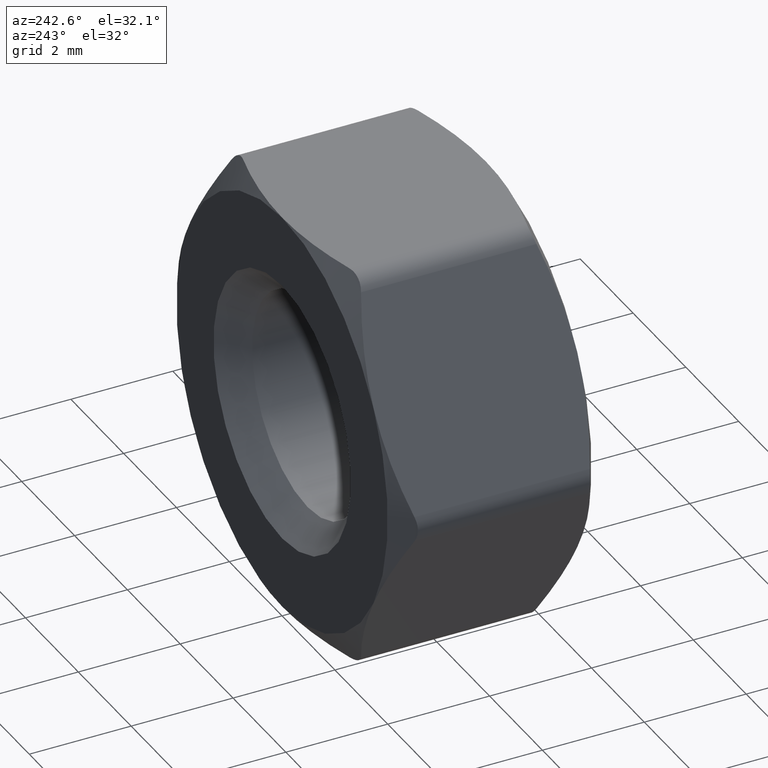
[diagram: clean part render]
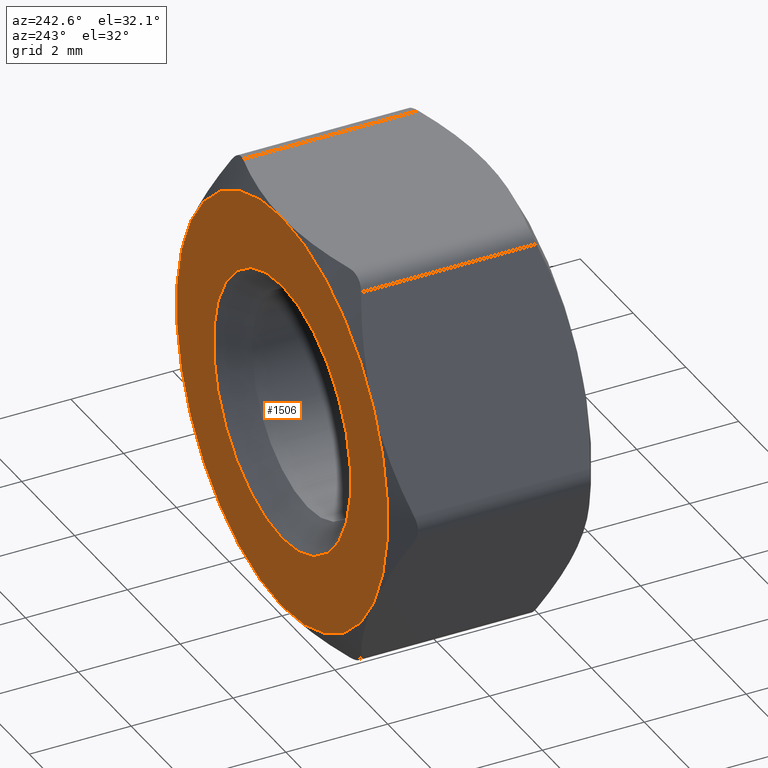
[diagram: same view with one face highlighted and labeled with its STEP entity id]
A machine part, auxiliary view. The second image highlights one B-rep face of the part: STEP entity #1506.
In plain terms, the highlighted planar face has unit normal (0, 1, 0).
Its self-contained STEP definition (entity closure, byte-faithful):
#15 = ORIENTED_EDGE ( 'NONE', *, *, #1090, .F. ) ;
#34 = ORIENTED_EDGE ( 'NONE', *, *, #771, .F. ) ;
#90 = AXIS2_PLACEMENT_3D ( 'NONE', #1429, #1722, #202 ) ;
#106 = CARTESIAN_POINT ( 'NONE',  ( 0.0000000000000000000, 2.000000000000000000, 2.600000000000000100 ) ) ;
#177 = CARTESIAN_POINT ( 'NONE',  ( 0.0000000000000000000, 2.000000000000000000, 0.0000000000000000000 ) ) ;
#202 = DIRECTION ( 'NONE',  ( 0.0000000000000000000, -0.0000000000000000000, 1.000000000000000000 ) ) ;
#232 = DIRECTION ( 'NONE',  ( 0.0000000000000000000, 0.0000000000000000000, 1.000000000000000000 ) ) ;
#243 = ORIENTED_EDGE ( 'NONE', *, *, #1438, .T. ) ;
#299 = CARTESIAN_POINT ( 'NONE',  ( -3.386450907888040900E-016, 2.000000000000000000, 1.173101005959984200E-015 ) ) ;
#330 = EDGE_CURVE ( 'NONE', #1328, #1303, #571, .T. ) ;
#333 = EDGE_LOOP ( 'NONE', ( #34, #15, #1243, #818, #1570, #1660 ) ) ;
#336 = DIRECTION ( 'NONE',  ( 0.0000000000000000000, 0.0000000000000000000, 1.000000000000000000 ) ) ;
#359 = AXIS2_PLACEMENT_3D ( 'NONE', #1763, #1173, #232 ) ;
#416 = AXIS2_PLACEMENT_3D ( 'NONE', #1409, #1548, #728 ) ;
#438 = AXIS2_PLACEMENT_3D ( 'NONE', #177, #1405, #868 ) ;
#448 = CARTESIAN_POINT ( 'NONE',  ( 3.464101615137754400, 1.999999999999999600, 2.000000000000000400 ) ) ;
#498 = EDGE_CURVE ( 'NONE', #1134, #1328, #1128, .T. ) ;
#516 = CARTESIAN_POINT ( 'NONE',  ( -3.386450907888039500E-016, 1.999999999999999100, 4.000000000000000000 ) ) ;
#522 = CARTESIAN_POINT ( 'NONE',  ( -3.464101615137754800, 1.999999999999998700, 2.000000000000001300 ) ) ;
#524 = CARTESIAN_POINT ( 'NONE',  ( -3.386450907888040900E-016, 2.000000000000000000, 1.173101005959984200E-015 ) ) ;
#565 = AXIS2_PLACEMENT_3D ( 'NONE', #524, #659, #1642 ) ;
#571 = CIRCLE ( 'NONE', #416, 3.999999999999997300 ) ;
#626 = VERTEX_POINT ( 'NONE', #516 ) ;
#659 = DIRECTION ( 'NONE',  ( -0.0000000000000000000, -1.000000000000000000, -0.0000000000000000000 ) ) ;
#699 = CARTESIAN_POINT ( 'NONE',  ( -3.386450907888039500E-016, 1.999999999999999100, -4.000000000000000000 ) ) ;
#711 = CIRCLE ( 'NONE', #749, 4.000000000000000000 ) ;
#728 = DIRECTION ( 'NONE',  ( 1.776356839400250500E-015, 0.0000000000000000000, 1.000000000000000000 ) ) ;
#734 = CIRCLE ( 'NONE', #359, 3.999999999999997300 ) ;
#749 = AXIS2_PLACEMENT_3D ( 'NONE', #1666, #1363, #1247 ) ;
#771 = EDGE_CURVE ( 'NONE', #626, #1667, #1111, .T. ) ;
#792 = VERTEX_POINT ( 'NONE', #106 ) ;
#818 = ORIENTED_EDGE ( 'NONE', *, *, #498, .F. ) ;
#841 = CARTESIAN_POINT ( 'NONE',  ( -3.464101615137756600, 1.999999999999998700, -1.999999999999998700 ) ) ;
#868 = DIRECTION ( 'NONE',  ( 0.0000000000000000000, 0.0000000000000000000, 1.000000000000000000 ) ) ;
#939 = CIRCLE ( 'NONE', #438, 2.600000000000000100 ) ;
#955 = DIRECTION ( 'NONE',  ( -0.0000000000000000000, -1.000000000000000000, -0.0000000000000000000 ) ) ;
#969 = DIRECTION ( 'NONE',  ( 0.0000000000000000000, 0.0000000000000000000, 1.000000000000000000 ) ) ;
#1002 = EDGE_LOOP ( 'NONE', ( #243 ) ) ;
#1007 = CARTESIAN_POINT ( 'NONE',  ( -3.386450907888040900E-016, 2.000000000000000000, 1.173101005959984200E-015 ) ) ;
#1090 = EDGE_CURVE ( 'NONE', #1303, #626, #711, .T. ) ;
#1111 = CIRCLE ( 'NONE', #565, 3.999999999999997300 ) ;
#1121 = EDGE_CURVE ( 'NONE', #1224, #1134, #1297, .T. ) ;
#1128 = CIRCLE ( 'NONE', #1696, 3.999999999999997300 ) ;
#1134 = VERTEX_POINT ( 'NONE', #699 ) ;
#1152 = PLANE ( 'NONE',  #90 ) ;
#1173 = DIRECTION ( 'NONE',  ( -0.0000000000000000000, -1.000000000000000000, -0.0000000000000000000 ) ) ;
#1224 = VERTEX_POINT ( 'NONE', #841 ) ;
#1228 = CARTESIAN_POINT ( 'NONE',  ( 3.464101615137754800, 1.999999999999999600, -2.000000000000000000 ) ) ;
#1243 = ORIENTED_EDGE ( 'NONE', *, *, #330, .F. ) ;
#1247 = DIRECTION ( 'NONE',  ( 1.000000000000000000, 2.168404344971008900E-016, 0.0000000000000000000 ) ) ;
#1297 = CIRCLE ( 'NONE', #1384, 3.999999999999997300 ) ;
#1303 = VERTEX_POINT ( 'NONE', #448 ) ;
#1320 = FACE_BOUND ( 'NONE', #1002, .T. ) ;
#1328 = VERTEX_POINT ( 'NONE', #1228 ) ;
#1363 = DIRECTION ( 'NONE',  ( 1.693225453944021200E-016, -1.000000000000000000, -0.0000000000000000000 ) ) ;
#1384 = AXIS2_PLACEMENT_3D ( 'NONE', #299, #955, #969 ) ;
#1405 = DIRECTION ( 'NONE',  ( -0.0000000000000000000, -1.000000000000000000, -0.0000000000000000000 ) ) ;
#1409 = CARTESIAN_POINT ( 'NONE',  ( -3.386450907888040900E-016, 2.000000000000000000, 1.173101005959984200E-015 ) ) ;
#1429 = CARTESIAN_POINT ( 'NONE',  ( 0.0000000000000000000, 2.000000000000000000, 0.0000000000000000000 ) ) ;
#1438 = EDGE_CURVE ( 'NONE', #792, #792, #939, .T. ) ;
#1446 = FACE_OUTER_BOUND ( 'NONE', #333, .T. ) ;
#1506 = ADVANCED_FACE ( 'NONE', ( #1320, #1446 ), #1152, .T. ) ;
#1548 = DIRECTION ( 'NONE',  ( -0.0000000000000000000, -1.000000000000000000, -0.0000000000000000000 ) ) ;
#1570 = ORIENTED_EDGE ( 'NONE', *, *, #1121, .F. ) ;
#1579 = DIRECTION ( 'NONE',  ( -0.0000000000000000000, -1.000000000000000000, -0.0000000000000000000 ) ) ;
#1642 = DIRECTION ( 'NONE',  ( 0.0000000000000000000, 0.0000000000000000000, 1.000000000000000000 ) ) ;
#1648 = EDGE_CURVE ( 'NONE', #1667, #1224, #734, .T. ) ;
#1660 = ORIENTED_EDGE ( 'NONE', *, *, #1648, .F. ) ;
#1666 = CARTESIAN_POINT ( 'NONE',  ( -3.386450907888040900E-016, 1.999999999999999100, 0.0000000000000000000 ) ) ;
#1667 = VERTEX_POINT ( 'NONE', #522 ) ;
#1696 = AXIS2_PLACEMENT_3D ( 'NONE', #1007, #1579, #336 ) ;
#1722 = DIRECTION ( 'NONE',  ( 0.0000000000000000000, 1.000000000000000000, 0.0000000000000000000 ) ) ;
#1763 = CARTESIAN_POINT ( 'NONE',  ( -3.386450907888040900E-016, 2.000000000000000000, 1.173101005959984200E-015 ) ) ;